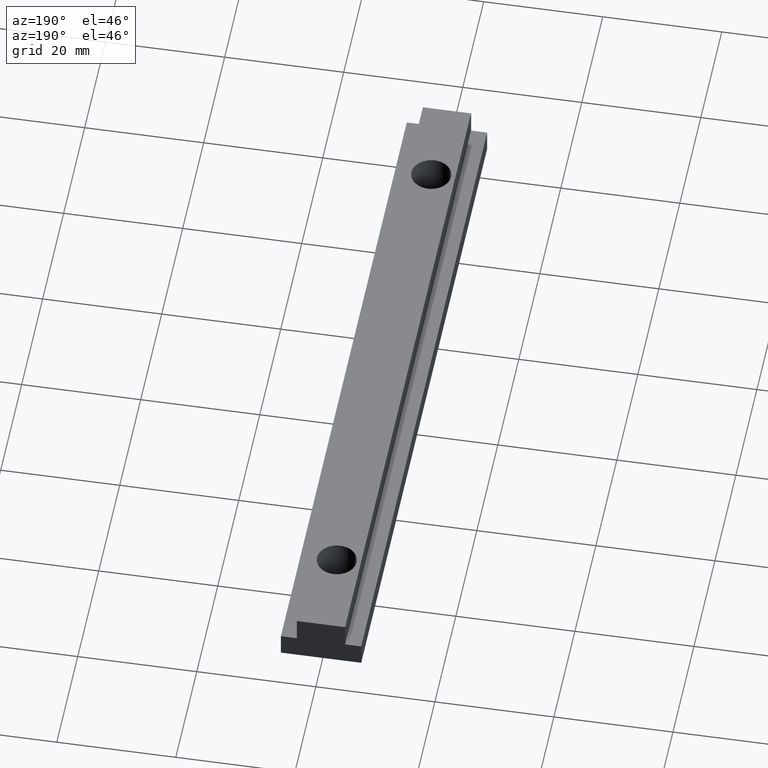
[diagram: clean part render]
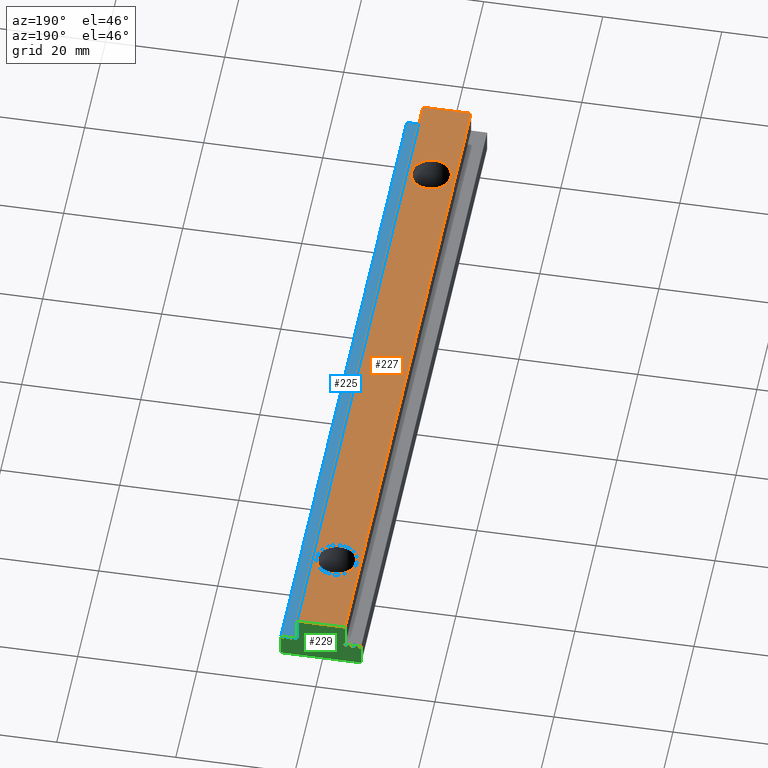
[diagram: same view with three faces highlighted in distinct colors, each labeled with its STEP entity id]
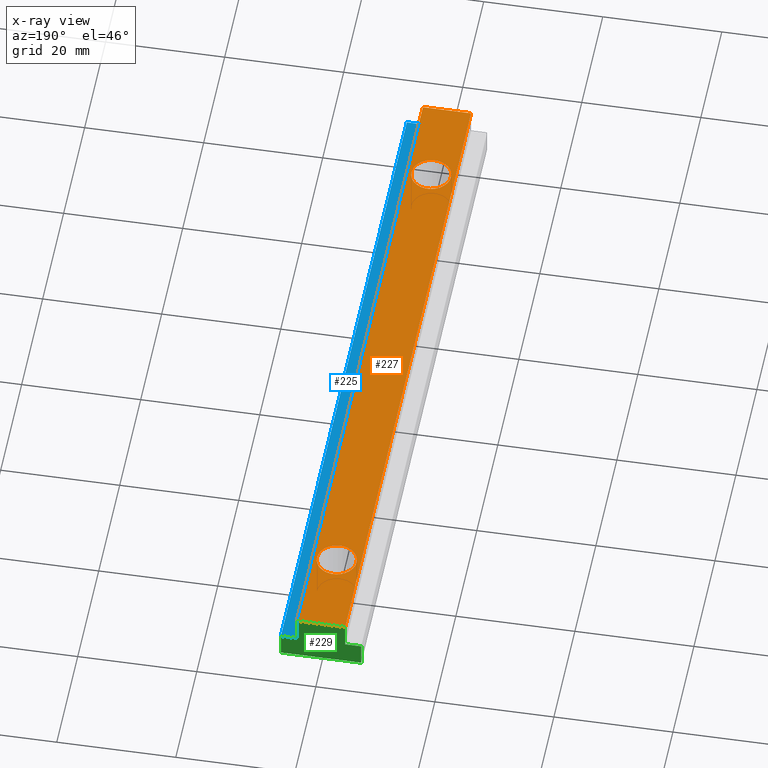
[diagram: x-ray of the same camera — body ghosted, the three highlighted faces saturated]
A machine part, auxiliary view with three faces highlighted in distinct colors.
The next image is the same camera in x-ray (body ghosted, the three faces saturated) — at least one of them is partly hidden behind the body in this view.
Their STEP definitions:

[orange] entity #227 — the highlighted planar face has unit normal (0, 0, 1).
#32=LINE('',#355,#56);
#34=LINE('',#360,#58);
#35=LINE('',#361,#59);
#36=LINE('',#362,#60);
#56=VECTOR('',#292,120.);
#58=VECTOR('',#296,120.);
#59=VECTOR('',#297,8.09999999996762);
#60=VECTOR('',#298,8.09999999996762);
#69=PLANE('',#245);
#77=FACE_BOUND('',#104,.T.);
#78=FACE_BOUND('',#105,.T.);
#87=FACE_OUTER_BOUND('',#103,.T.);
#103=EDGE_LOOP('',(#191,#192,#193,#194));
#104=EDGE_LOOP('',(#195));
#105=EDGE_LOOP('',(#196));
#109=CIRCLE('',#234,3.3235);
#111=CIRCLE('',#237,3.3235);
#113=VERTEX_POINT('',#309);
#115=VERTEX_POINT('',#314);
#129=VERTEX_POINT('',#352);
#130=VERTEX_POINT('',#354);
#131=VERTEX_POINT('',#358);
#132=VERTEX_POINT('',#359);
#133=EDGE_CURVE('',#113,#113,#109,.T.);
#135=EDGE_CURVE('',#115,#115,#111,.T.);
#154=EDGE_CURVE('',#129,#130,#32,.T.);
#156=EDGE_CURVE('',#131,#132,#34,.T.);
#157=EDGE_CURVE('',#130,#132,#35,.T.);
#158=EDGE_CURVE('',#129,#131,#36,.T.);
#191=ORIENTED_EDGE('',*,*,#156,.T.);
#192=ORIENTED_EDGE('',*,*,#157,.F.);
#193=ORIENTED_EDGE('',*,*,#154,.F.);
#194=ORIENTED_EDGE('',*,*,#158,.T.);
#195=ORIENTED_EDGE('',*,*,#133,.T.);
#196=ORIENTED_EDGE('',*,*,#135,.T.);
#227=ADVANCED_FACE('',(#87,#77,#78),#69,.T.);
#234=AXIS2_PLACEMENT_3D('',#310,#253,#254);
#237=AXIS2_PLACEMENT_3D('',#315,#259,#260);
#245=AXIS2_PLACEMENT_3D('',#357,#294,#295);
#253=DIRECTION('center_axis',(0.,0.,-1.));
#254=DIRECTION('ref_axis',(-1.,0.,0.));
#259=DIRECTION('center_axis',(0.,0.,-1.));
#260=DIRECTION('ref_axis',(-1.,0.,0.));
#292=DIRECTION('',(0.,-1.,0.));
#294=DIRECTION('center_axis',(0.,0.,1.));
#295=DIRECTION('ref_axis',(1.,0.,0.));
#296=DIRECTION('',(0.,-1.,0.));
#297=DIRECTION('',(-1.,0.,0.));
#298=DIRECTION('',(-1.,0.,0.));
#309=CARTESIAN_POINT('',(3.3235,-4.07011363696623E-16,7.99999999996817));
#310=CARTESIAN_POINT('Origin',(0.,0.,7.99999999996817));
#314=CARTESIAN_POINT('',(3.3235,-89.9999999996403,7.99999999996817));
#315=CARTESIAN_POINT('Origin',(0.,-89.9999999996403,7.99999999996817));
#352=CARTESIAN_POINT('',(4.04999999998381,15.0000000004197,7.99999999996817));
#354=CARTESIAN_POINT('',(4.04999999998381,-104.99999999958,7.99999999996817));
#355=CARTESIAN_POINT('',(4.04999999998381,-91.9615045242668,7.99999999996817));
#357=CARTESIAN_POINT('Origin',(4.04999999998381,15.0000000004197,7.99999999996817));
#358=CARTESIAN_POINT('',(-4.04999999998381,15.0000000004197,7.99999999996817));
#359=CARTESIAN_POINT('',(-4.04999999998381,-104.99999999958,7.99999999996817));
#360=CARTESIAN_POINT('',(-4.04999999998381,-91.9615045242668,7.99999999996817));
#361=CARTESIAN_POINT('',(4.04999999998381,-104.99999999958,7.99999999996817));
#362=CARTESIAN_POINT('',(4.04999999998381,15.0000000004197,7.99999999996817));

[blue] entity #225 — the highlighted planar face has unit normal (0, 0, 1).
#26=LINE('',#343,#50);
#28=LINE('',#347,#52);
#29=LINE('',#349,#53);
#30=LINE('',#350,#54);
#50=VECTOR('',#282,120.);
#52=VECTOR('',#286,2.69999999998936);
#53=VECTOR('',#287,120.);
#54=VECTOR('',#288,2.69999999998936);
#67=PLANE('',#243);
#85=FACE_OUTER_BOUND('',#101,.T.);
#101=EDGE_LOOP('',(#183,#184,#185,#186));
#125=VERTEX_POINT('',#340);
#126=VERTEX_POINT('',#342);
#127=VERTEX_POINT('',#346);
#128=VERTEX_POINT('',#348);
#148=EDGE_CURVE('',#125,#126,#26,.T.);
#150=EDGE_CURVE('',#125,#127,#28,.T.);
#151=EDGE_CURVE('',#127,#128,#29,.T.);
#152=EDGE_CURVE('',#126,#128,#30,.T.);
#183=ORIENTED_EDGE('',*,*,#150,.T.);
#184=ORIENTED_EDGE('',*,*,#151,.T.);
#185=ORIENTED_EDGE('',*,*,#152,.F.);
#186=ORIENTED_EDGE('',*,*,#148,.F.);
#225=ADVANCED_FACE('',(#85),#67,.T.);
#243=AXIS2_PLACEMENT_3D('',#345,#284,#285);
#282=DIRECTION('',(0.,-1.,0.));
#284=DIRECTION('center_axis',(0.,0.,1.));
#285=DIRECTION('ref_axis',(1.,0.,0.));
#286=DIRECTION('',(-1.,0.,0.));
#287=DIRECTION('',(0.,-1.,0.));
#288=DIRECTION('',(-1.,0.,0.));
#340=CARTESIAN_POINT('',(6.74999999997317,15.0000000004197,3.89999999998463));
#342=CARTESIAN_POINT('',(6.74999999997317,-104.99999999958,3.89999999998463));
#343=CARTESIAN_POINT('',(6.74999999997317,15.0000000004197,3.89999999998463));
#345=CARTESIAN_POINT('Origin',(6.74999999997317,15.0000000004197,3.89999999998463));
#346=CARTESIAN_POINT('',(4.04999999998381,15.0000000004197,3.89999999998463));
#347=CARTESIAN_POINT('',(6.74999999997317,15.0000000004197,3.89999999998463));
#348=CARTESIAN_POINT('',(4.04999999998381,-104.99999999958,3.89999999998463));
#349=CARTESIAN_POINT('',(4.04999999998381,15.0000000004197,3.89999999998463));
#350=CARTESIAN_POINT('',(6.74999999997317,-104.99999999958,3.89999999998463));

[green] entity #229 — the highlighted planar face has unit normal (0, -1, 0).
#15=LINE('',#321,#39);
#19=LINE('',#329,#43);
#22=LINE('',#335,#46);
#25=LINE('',#341,#49);
#28=LINE('',#347,#52);
#31=LINE('',#353,#55);
#36=LINE('',#362,#60);
#38=LINE('',#365,#62);
#39=VECTOR('',#265,2.6999999999889);
#43=VECTOR('',#271,3.89999999998463);
#46=VECTOR('',#276,13.4999999999459);
#49=VECTOR('',#281,3.89999999998463);
#52=VECTOR('',#286,2.69999999998936);
#55=VECTOR('',#291,4.09999999998354);
#60=VECTOR('',#298,8.09999999996762);
#62=VECTOR('',#302,4.09999999998354);
#71=PLANE('',#247);
#89=FACE_OUTER_BOUND('',#107,.T.);
#107=EDGE_LOOP('',(#201,#202,#203,#204,#205,#206,#207,#208));
#117=VERTEX_POINT('',#319);
#118=VERTEX_POINT('',#320);
#121=VERTEX_POINT('',#328);
#123=VERTEX_POINT('',#334);
#125=VERTEX_POINT('',#340);
#127=VERTEX_POINT('',#346);
#129=VERTEX_POINT('',#352);
#131=VERTEX_POINT('',#358);
#137=EDGE_CURVE('',#117,#118,#15,.T.);
#141=EDGE_CURVE('',#118,#121,#19,.T.);
#144=EDGE_CURVE('',#121,#123,#22,.T.);
#147=EDGE_CURVE('',#123,#125,#25,.T.);
#150=EDGE_CURVE('',#125,#127,#28,.T.);
#153=EDGE_CURVE('',#127,#129,#31,.T.);
#158=EDGE_CURVE('',#129,#131,#36,.T.);
#160=EDGE_CURVE('',#131,#117,#38,.T.);
#201=ORIENTED_EDGE('',*,*,#160,.F.);
#202=ORIENTED_EDGE('',*,*,#158,.F.);
#203=ORIENTED_EDGE('',*,*,#153,.F.);
#204=ORIENTED_EDGE('',*,*,#150,.F.);
#205=ORIENTED_EDGE('',*,*,#147,.F.);
#206=ORIENTED_EDGE('',*,*,#144,.F.);
#207=ORIENTED_EDGE('',*,*,#141,.F.);
#208=ORIENTED_EDGE('',*,*,#137,.F.);
#229=ADVANCED_FACE('',(#89),#71,.F.);
#247=AXIS2_PLACEMENT_3D('',#366,#303,#304);
#265=DIRECTION('',(-1.,0.,0.));
#271=DIRECTION('',(0.,0.,-1.));
#276=DIRECTION('',(1.,0.,0.));
#281=DIRECTION('',(0.,0.,1.));
#286=DIRECTION('',(-1.,0.,0.));
#291=DIRECTION('',(0.,0.,1.));
#298=DIRECTION('',(-1.,0.,0.));
#302=DIRECTION('',(0.,0.,-1.));
#303=DIRECTION('center_axis',(0.,-1.,0.));
#304=DIRECTION('ref_axis',(0.,0.,-1.));
#319=CARTESIAN_POINT('',(-4.04999999998381,15.0000000004197,3.89999999998463));
#320=CARTESIAN_POINT('',(-6.74999999997272,15.0000000004197,3.89999999998463));
#321=CARTESIAN_POINT('',(-4.04999999998381,15.0000000004197,3.89999999998463));
#328=CARTESIAN_POINT('',(-6.74999999997272,15.0000000004197,-8.881784E-16));
#329=CARTESIAN_POINT('',(-6.74999999997272,15.0000000004197,3.89999999998463));
#334=CARTESIAN_POINT('',(6.74999999997317,15.0000000004197,-8.881784E-16));
#335=CARTESIAN_POINT('',(-6.74999999997272,15.0000000004197,-8.881784E-16));
#340=CARTESIAN_POINT('',(6.74999999997317,15.0000000004197,3.89999999998463));
#341=CARTESIAN_POINT('',(6.74999999997317,15.0000000004197,-8.881784E-16));
#346=CARTESIAN_POINT('',(4.04999999998381,15.0000000004197,3.89999999998463));
#347=CARTESIAN_POINT('',(6.74999999997317,15.0000000004197,3.89999999998463));
#352=CARTESIAN_POINT('',(4.04999999998381,15.0000000004197,7.99999999996817));
#353=CARTESIAN_POINT('',(4.04999999998381,15.0000000004197,3.89999999998463));
#358=CARTESIAN_POINT('',(-4.04999999998381,15.0000000004197,7.99999999996817));
#362=CARTESIAN_POINT('',(4.04999999998381,15.0000000004197,7.99999999996817));
#365=CARTESIAN_POINT('',(-4.04999999998381,15.0000000004197,7.99999999996817));
#366=CARTESIAN_POINT('Origin',(-8.10000473353739,15.0000000004197,-0.800004733558127));